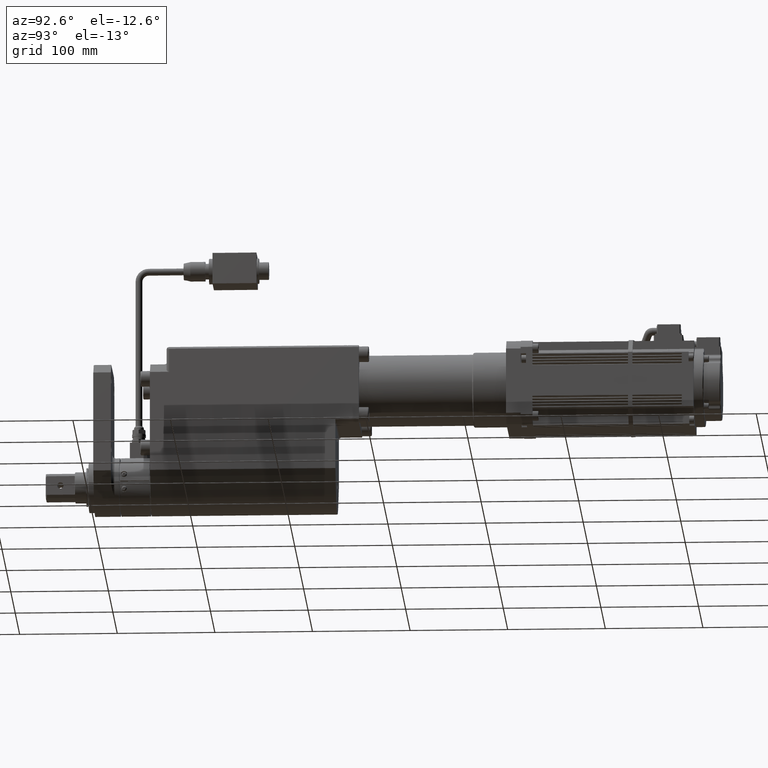
[diagram: clean part render]
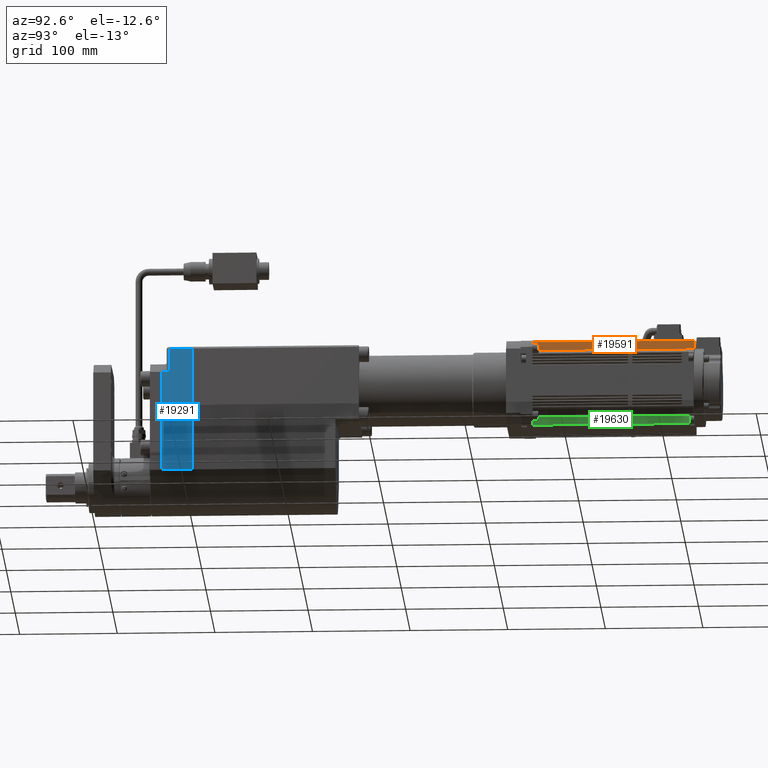
[diagram: same view with three faces highlighted in distinct colors, each labeled with its STEP entity id]
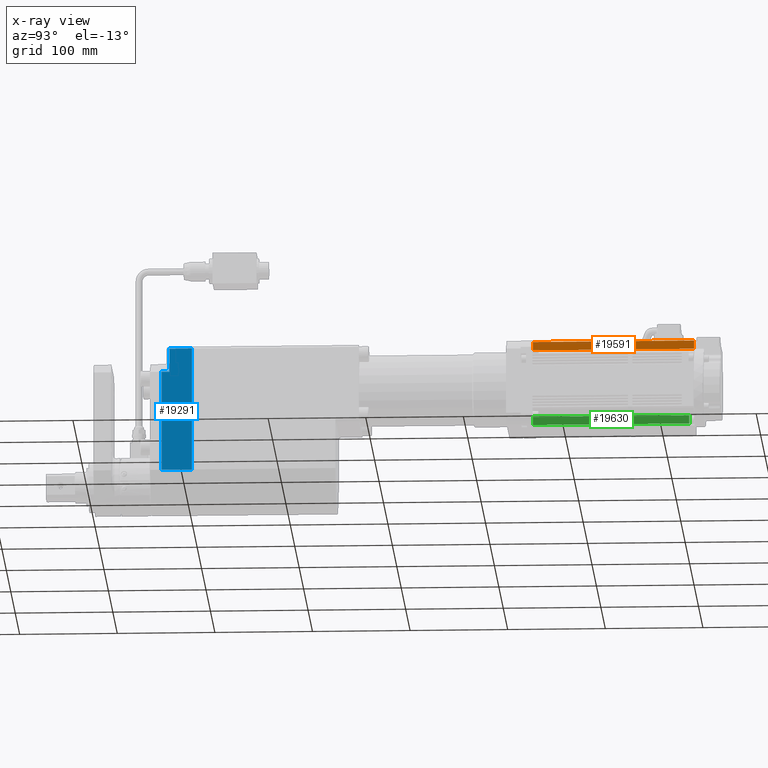
[diagram: x-ray of the same camera — body ghosted, the three highlighted faces saturated]
A machine part, auxiliary view with three faces highlighted in distinct colors.
The next image is the same camera in x-ray (body ghosted, the three faces saturated) — at least one of them is partly hidden behind the body in this view.
Their STEP definitions:

[orange] entity #19591 — the highlighted planar face has unit normal (-1, -0, -0).
#351=PLANE('',#21180);
#1865=FACE_OUTER_BOUND('',#3029,.T.);
#3029=EDGE_LOOP('',(#15602,#15603,#15604,#15605,#15606,#15607,#15608,#15609));
#5068=LINE('',#32654,#6826);
#5069=LINE('',#32656,#6827);
#5070=LINE('',#32658,#6828);
#5071=LINE('',#32660,#6829);
#5072=LINE('',#32662,#6830);
#5073=LINE('',#32664,#6831);
#5074=LINE('',#32666,#6832);
#5075=LINE('',#32667,#6833);
#6826=VECTOR('',#24776,10.);
#6827=VECTOR('',#24777,10.);
#6828=VECTOR('',#24778,10.);
#6829=VECTOR('',#24779,10.);
#6830=VECTOR('',#24780,10.);
#6831=VECTOR('',#24781,10.);
#6832=VECTOR('',#24782,10.);
#6833=VECTOR('',#24783,10.);
#8928=VERTEX_POINT('',#32652);
#8929=VERTEX_POINT('',#32653);
#8930=VERTEX_POINT('',#32655);
#8931=VERTEX_POINT('',#32657);
#8932=VERTEX_POINT('',#32659);
#8933=VERTEX_POINT('',#32661);
#8934=VERTEX_POINT('',#32663);
#8935=VERTEX_POINT('',#32665);
#11303=EDGE_CURVE('',#8928,#8929,#5068,.T.);
#11304=EDGE_CURVE('',#8930,#8929,#5069,.T.);
#11305=EDGE_CURVE('',#8930,#8931,#5070,.T.);
#11306=EDGE_CURVE('',#8932,#8931,#5071,.T.);
#11307=EDGE_CURVE('',#8933,#8932,#5072,.T.);
#11308=EDGE_CURVE('',#8934,#8933,#5073,.T.);
#11309=EDGE_CURVE('',#8934,#8935,#5074,.T.);
#11310=EDGE_CURVE('',#8935,#8928,#5075,.T.);
#15602=ORIENTED_EDGE('',*,*,#11303,.T.);
#15603=ORIENTED_EDGE('',*,*,#11304,.F.);
#15604=ORIENTED_EDGE('',*,*,#11305,.T.);
#15605=ORIENTED_EDGE('',*,*,#11306,.F.);
#15606=ORIENTED_EDGE('',*,*,#11307,.F.);
#15607=ORIENTED_EDGE('',*,*,#11308,.F.);
#15608=ORIENTED_EDGE('',*,*,#11309,.T.);
#15609=ORIENTED_EDGE('',*,*,#11310,.T.);
#19591=ADVANCED_FACE('',(#1865),#351,.F.);
#21180=AXIS2_PLACEMENT_3D('',#32651,#24774,#24775);
#24774=DIRECTION('center_axis',(-1.,-3.97615775803822E-16,-3.83026943495679E-15));
#24775=DIRECTION('ref_axis',(3.83026943495679E-15,-3.63045095549998E-16,
-1.));
#24776=DIRECTION('',(-3.83026943495679E-15,3.63045095549998E-16,1.));
#24777=DIRECTION('',(-3.9761577580382E-16,1.,-3.6304509555E-16));
#24778=DIRECTION('',(3.83026943495679E-15,-3.63045095549998E-16,-1.));
#24779=DIRECTION('',(3.9761577580382E-16,-1.,3.6304509555E-16));
#24780=DIRECTION('',(3.83026943495679E-15,-3.63045095549998E-16,-1.));
#24781=DIRECTION('',(-3.9761577580382E-16,1.,-3.6304509555E-16));
#24782=DIRECTION('',(3.83026943495679E-15,-3.63045095549998E-16,-1.));
#24783=DIRECTION('',(3.9761577580382E-16,-1.,3.6304509555E-16));
#32651=CARTESIAN_POINT('Origin',(28.4999999999998,615.,141.85));
#32652=CARTESIAN_POINT('',(28.4999999999998,548.,141.757422498069));
#32653=CARTESIAN_POINT('',(28.4999999999998,548.,141.85));
#32654=CARTESIAN_POINT('',(28.4999999999999,548.,122.1));
#32655=CARTESIAN_POINT('',(28.4999999999998,450.,141.85));
#32656=CARTESIAN_POINT('',(28.4999999999998,526.5,141.85));
#32657=CARTESIAN_POINT('',(28.4999999999999,450.,133.174560298732));
#32658=CARTESIAN_POINT('',(28.4999999999999,450.,133.174560298732));
#32659=CARTESIAN_POINT('',(28.4999999999998,615.,133.174560298732));
#32660=CARTESIAN_POINT('',(28.4999999999998,615.,133.174560298732));
#32661=CARTESIAN_POINT('',(28.4999999999998,615.,141.85));
#32662=CARTESIAN_POINT('',(28.4999999999998,615.,120.1));
#32663=CARTESIAN_POINT('',(28.4999999999998,552.5,141.85));
#32664=CARTESIAN_POINT('',(28.4999999999998,526.5,141.85));
#32665=CARTESIAN_POINT('',(28.4999999999998,552.5,141.757422498069));
#32666=CARTESIAN_POINT('',(28.4999999999999,552.5,122.1));
#32667=CARTESIAN_POINT('',(28.4999999999998,581.5,141.757422498069));

[blue] entity #19291 — the highlighted planar face has unit normal (-1, -0, 0).
#178=PLANE('',#20636);
#1565=FACE_OUTER_BOUND('',#2674,.T.);
#2674=EDGE_LOOP('',(#14037,#14038,#14039,#14040,#14041,#14042));
#4691=LINE('',#29849,#6449);
#4715=LINE('',#30003,#6473);
#4716=LINE('',#30016,#6474);
#4717=LINE('',#30018,#6475);
#4718=LINE('',#30019,#6476);
#4719=LINE('',#30020,#6477);
#6449=VECTOR('',#23251,10.);
#6473=VECTOR('',#23329,10.);
#6474=VECTOR('',#23336,10.);
#6475=VECTOR('',#23337,10.);
#6476=VECTOR('',#23338,10.);
#6477=VECTOR('',#23339,10.);
#8379=VERTEX_POINT('',#29840);
#8382=VERTEX_POINT('',#29848);
#8412=VERTEX_POINT('',#30000);
#8413=VERTEX_POINT('',#30002);
#8414=VERTEX_POINT('',#30015);
#8415=VERTEX_POINT('',#30017);
#10482=EDGE_CURVE('',#8379,#8382,#4691,.T.);
#10527=EDGE_CURVE('',#8412,#8413,#4715,.T.);
#10530=EDGE_CURVE('',#8414,#8412,#4716,.T.);
#10531=EDGE_CURVE('',#8414,#8415,#4717,.T.);
#10532=EDGE_CURVE('',#8415,#8382,#4718,.T.);
#10533=EDGE_CURVE('',#8413,#8379,#4719,.T.);
#14037=ORIENTED_EDGE('',*,*,#10530,.F.);
#14038=ORIENTED_EDGE('',*,*,#10531,.T.);
#14039=ORIENTED_EDGE('',*,*,#10532,.T.);
#14040=ORIENTED_EDGE('',*,*,#10482,.F.);
#14041=ORIENTED_EDGE('',*,*,#10533,.F.);
#14042=ORIENTED_EDGE('',*,*,#10527,.F.);
#19291=ADVANCED_FACE('',(#1565),#178,.F.);
#20636=AXIS2_PLACEMENT_3D('',#30014,#23334,#23335);
#23251=DIRECTION('',(-1.11022302462516E-15,-1.67344445344626E-31,-1.));
#23329=DIRECTION('',(1.11022302462516E-15,1.67344445344626E-31,1.));
#23334=DIRECTION('center_axis',(-1.,-3.82012223526929E-16,1.11022302462516E-15));
#23335=DIRECTION('ref_axis',(1.11022302462516E-15,1.67344445344626E-31,
1.));
#23336=DIRECTION('',(-3.82012223526929E-16,1.,2.3556838259083E-31));
#23337=DIRECTION('',(0.,0.,-1.));
#23338=DIRECTION('',(-3.82012223526929E-16,1.,2.56774320903223E-31));
#23339=DIRECTION('',(-3.82012223526929E-16,1.,2.56774320903223E-31));
#29840=CARTESIAN_POINT('',(40.0000000000001,101.,136.099172176354));
#29848=CARTESIAN_POINT('',(40.,101.,9.28203230275506));
#29849=CARTESIAN_POINT('',(40.,101.,4.64101615137751));
#30000=CARTESIAN_POINT('',(40.0000000000001,78.,112.));
#30002=CARTESIAN_POINT('',(40.0000000000001,78.,136.099172176354));
#30003=CARTESIAN_POINT('',(40.,78.,69.7410161513775));
#30014=CARTESIAN_POINT('Origin',(40.,70.,9.28203230275506));
#30015=CARTESIAN_POINT('',(40.,70.,112.));
#30016=CARTESIAN_POINT('',(40.0000000000001,70.,112.));
#30017=CARTESIAN_POINT('',(40.,70.,9.2820323027551));
#30018=CARTESIAN_POINT('',(40.,70.,4.64101615137755));
#30019=CARTESIAN_POINT('',(40.,70.,9.28203230275506));
#30020=CARTESIAN_POINT('',(40.0000000000001,70.,136.099172176354));

[green] entity #19630 — the highlighted planar face has unit normal (-1, -0, -0).
#382=PLANE('',#21270);
#1904=FACE_OUTER_BOUND('',#3072,.T.);
#3072=EDGE_LOOP('',(#15827,#15828,#15829,#15830,#15831,#15832,#15833,#15834));
#5167=LINE('',#32964,#6925);
#5168=LINE('',#32968,#6926);
#5169=LINE('',#32970,#6927);
#5170=LINE('',#32971,#6928);
#5171=LINE('',#32973,#6929);
#5172=LINE('',#32975,#6930);
#5173=LINE('',#32977,#6931);
#5174=LINE('',#32978,#6932);
#6925=VECTOR('',#25053,10.);
#6926=VECTOR('',#25056,10.);
#6927=VECTOR('',#25057,10.);
#6928=VECTOR('',#25058,10.);
#6929=VECTOR('',#25059,10.);
#6930=VECTOR('',#25060,10.);
#6931=VECTOR('',#25061,10.);
#6932=VECTOR('',#25062,10.);
#9037=VERTEX_POINT('',#32954);
#9040=VERTEX_POINT('',#32962);
#9041=VERTEX_POINT('',#32966);
#9042=VERTEX_POINT('',#32967);
#9043=VERTEX_POINT('',#32969);
#9044=VERTEX_POINT('',#32972);
#9045=VERTEX_POINT('',#32974);
#9046=VERTEX_POINT('',#32976);
#11454=EDGE_CURVE('',#9037,#9040,#5167,.T.);
#11455=EDGE_CURVE('',#9041,#9042,#5168,.T.);
#11456=EDGE_CURVE('',#9043,#9042,#5169,.T.);
#11457=EDGE_CURVE('',#9043,#9037,#5170,.T.);
#11458=EDGE_CURVE('',#9040,#9044,#5171,.T.);
#11459=EDGE_CURVE('',#9045,#9044,#5172,.T.);
#11460=EDGE_CURVE('',#9045,#9046,#5173,.T.);
#11461=EDGE_CURVE('',#9046,#9041,#5174,.T.);
#15827=ORIENTED_EDGE('',*,*,#11455,.T.);
#15828=ORIENTED_EDGE('',*,*,#11456,.F.);
#15829=ORIENTED_EDGE('',*,*,#11457,.T.);
#15830=ORIENTED_EDGE('',*,*,#11454,.T.);
#15831=ORIENTED_EDGE('',*,*,#11458,.T.);
#15832=ORIENTED_EDGE('',*,*,#11459,.F.);
#15833=ORIENTED_EDGE('',*,*,#11460,.T.);
#15834=ORIENTED_EDGE('',*,*,#11461,.T.);
#19630=ADVANCED_FACE('',(#1904),#382,.F.);
#21270=AXIS2_PLACEMENT_3D('',#32965,#25054,#25055);
#25053=DIRECTION('',(3.9761577580382E-16,-1.,3.6304509555E-16));
#25054=DIRECTION('center_axis',(-1.,-3.97615775803822E-16,-3.83026943495679E-15));
#25055=DIRECTION('ref_axis',(3.83026943495679E-15,-3.63045095549998E-16,
-1.));
#25056=DIRECTION('',(3.83026943495679E-15,-3.63045095549998E-16,-1.));
#25057=DIRECTION('',(3.9761577580382E-16,-1.,3.6304509555E-16));
#25058=DIRECTION('',(-3.83026943495679E-15,3.63045095549998E-16,1.));
#25059=DIRECTION('',(3.83026943495679E-15,-3.63045095549998E-16,-1.));
#25060=DIRECTION('',(3.9761577580382E-16,-1.,3.6304509555E-16));
#25061=DIRECTION('',(-3.83026943495679E-15,3.63045095549998E-16,1.));
#25062=DIRECTION('',(-3.9761577580382E-16,1.,-3.6304509555E-16));
#32954=CARTESIAN_POINT('',(28.5000000000001,610.,63.5254397012681));
#32962=CARTESIAN_POINT('',(28.5000000000001,450.,63.5254397012682));
#32964=CARTESIAN_POINT('',(28.5000000000001,615.,63.5254397012681));
#32965=CARTESIAN_POINT('Origin',(28.5000000000001,615.,63.5254397012681));
#32966=CARTESIAN_POINT('',(28.5000000000001,552.5,54.8917424305042));
#32967=CARTESIAN_POINT('',(28.5000000000001,552.5,54.8499999999998));
#32968=CARTESIAN_POINT('',(28.5,552.5,82.937719850634));
#32969=CARTESIAN_POINT('',(28.5000000000001,610.,54.8499999999998));
#32970=CARTESIAN_POINT('',(28.5000000000001,526.5,54.8499999999998));
#32971=CARTESIAN_POINT('',(28.5000000000001,610.,61.6877198506339));
#32972=CARTESIAN_POINT('',(28.5000000000002,450.,54.8499999999999));
#32973=CARTESIAN_POINT('',(28.5000000000002,450.,54.8499999999999));
#32974=CARTESIAN_POINT('',(28.5000000000001,548.,54.8499999999998));
#32975=CARTESIAN_POINT('',(28.5000000000001,526.5,54.8499999999998));
#32976=CARTESIAN_POINT('',(28.5000000000001,548.,54.8917424305042));
#32977=CARTESIAN_POINT('',(28.5,548.,82.937719850634));
#32978=CARTESIAN_POINT('',(28.5000000000001,548.,54.8917424305042));